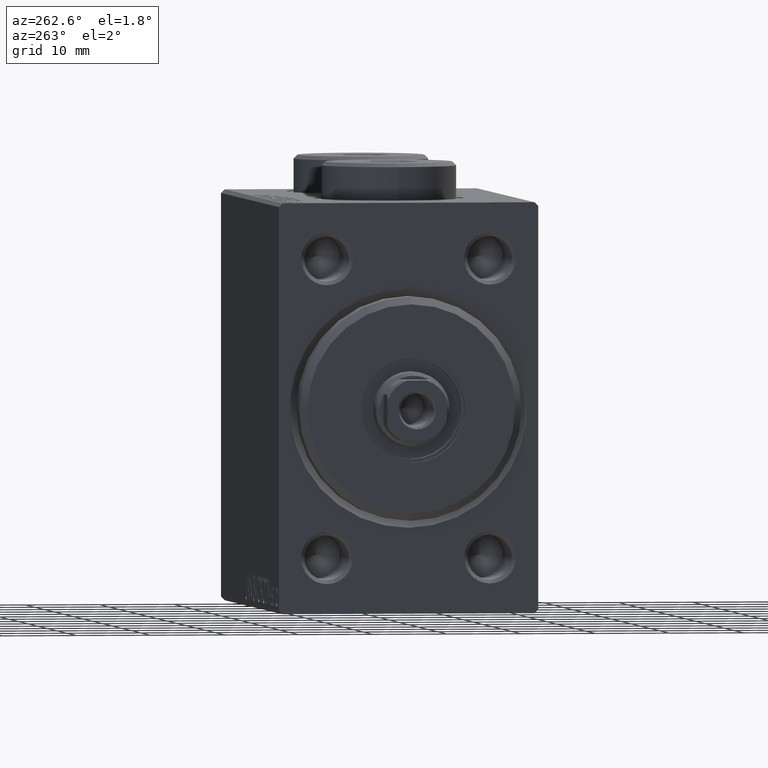
[diagram: clean part render]
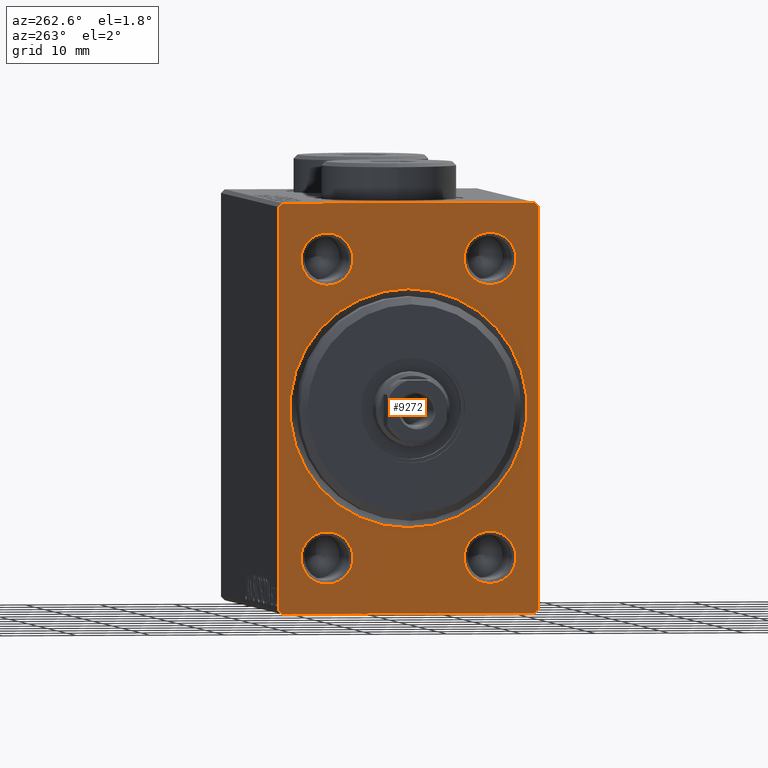
[diagram: same view with one face highlighted and labeled with its STEP entity id]
A machine part, auxiliary view. The second image highlights one B-rep face of the part: STEP entity #9272.
In plain terms, the highlighted planar face has unit normal (1, 0, 0).
Its self-contained STEP definition (entity closure, byte-faithful):
#93 = CARTESIAN_POINT ( 'NONE',  ( 0.000000000000000000, 11.00000000000000178, 20.00000000000000711 ) ) ;
#95 = VERTEX_POINT ( 'NONE', #7461 ) ;
#363 = DIRECTION ( 'NONE',  ( 0.000000000000000000, 0.000000000000000000, -1.000000000000000000 ) ) ;
#391 = DIRECTION ( 'NONE',  ( 1.000000000000000000, 0.000000000000000000, 0.000000000000000000 ) ) ;
#491 = DIRECTION ( 'NONE',  ( 0.000000000000000000, 0.000000000000000000, -1.000000000000000000 ) ) ;
#530 = EDGE_LOOP ( 'NONE', ( #40993, #10894, #7789, #10802, #27938, #6618, #10287, #5811 ) ) ;
#1183 = VECTOR ( 'NONE', #38516, 1000.000000000000000 ) ;
#2009 = VERTEX_POINT ( 'NONE', #4062 ) ;
#2363 = EDGE_CURVE ( 'NONE', #38786, #2778, #3820, .T. ) ;
#2778 = VERTEX_POINT ( 'NONE', #32804 ) ;
#2849 = VECTOR ( 'NONE', #12165, 1000.000000000000000 ) ;
#3013 = AXIS2_PLACEMENT_3D ( 'NONE', #32554, #33232, #15062 ) ;
#3486 = DIRECTION ( 'NONE',  ( 1.000000000000000000, 0.000000000000000000, 0.000000000000000000 ) ) ;
#3820 = CIRCLE ( 'NONE', #43513, 3.500000000000003109 ) ;
#4062 = CARTESIAN_POINT ( 'NONE',  ( 0.000000000000000000, -11.00000000000000533, 23.50000000000001066 ) ) ;
#4492 = CIRCLE ( 'NONE', #3013, 16.00000000000002842 ) ;
#4867 = EDGE_CURVE ( 'NONE', #41019, #8504, #33298, .T. ) ;
#4935 = CARTESIAN_POINT ( 'NONE',  ( 0.000000000000000000, 17.50000000000000711, -27.50000000000001066 ) ) ;
#5266 = CARTESIAN_POINT ( 'NONE',  ( 0.000000000000000000, -11.00000000000000533, -23.50000000000000355 ) ) ;
#5284 = CARTESIAN_POINT ( 'NONE',  ( 0.000000000000000000, -11.00000000000000533, -16.49999999999999645 ) ) ;
#5764 = ORIENTED_EDGE ( 'NONE', *, *, #38593, .T. ) ;
#5811 = ORIENTED_EDGE ( 'NONE', *, *, #6104, .T. ) ;
#6104 = EDGE_CURVE ( 'NONE', #17742, #16515, #14462, .T. ) ;
#6428 = ORIENTED_EDGE ( 'NONE', *, *, #17956, .T. ) ;
#6450 = CARTESIAN_POINT ( 'NONE',  ( 0.000000000000000000, 11.00000000000000178, -20.00000000000000000 ) ) ;
#6618 = ORIENTED_EDGE ( 'NONE', *, *, #29875, .T. ) ;
#7040 = FACE_OUTER_BOUND ( 'NONE', #530, .T. ) ;
#7179 = CARTESIAN_POINT ( 'NONE',  ( 0.000000000000000000, -11.00000000000000533, -20.00000000000000000 ) ) ;
#7461 = CARTESIAN_POINT ( 'NONE',  ( 0.000000000000000000, 0.000000000000000000, 16.00000000000002842 ) ) ;
#7789 = ORIENTED_EDGE ( 'NONE', *, *, #28911, .F. ) ;
#7919 = CARTESIAN_POINT ( 'NONE',  ( 0.000000000000000000, 11.00000000000000178, 20.00000000000000711 ) ) ;
#8425 = VERTEX_POINT ( 'NONE', #17671 ) ;
#8504 = VERTEX_POINT ( 'NONE', #44058 ) ;
#8511 = EDGE_CURVE ( 'NONE', #2009, #42471, #11978, .T. ) ;
#8625 = DIRECTION ( 'NONE',  ( 1.000000000000000000, 0.000000000000000000, 0.000000000000000000 ) ) ;
#9133 = VERTEX_POINT ( 'NONE', #10320 ) ;
#9272 = ADVANCED_FACE ( 'NONE', ( #21083, #10501, #28205, #28653, #24066, #7040 ), #45474, .F. ) ;
#9661 = CARTESIAN_POINT ( 'NONE',  ( 0.000000000000000000, 17.00000000000000000, 27.49999999999999289 ) ) ;
#10118 = ORIENTED_EDGE ( 'NONE', *, *, #36558, .T. ) ;
#10287 = ORIENTED_EDGE ( 'NONE', *, *, #22555, .F. ) ;
#10320 = CARTESIAN_POINT ( 'NONE',  ( 0.000000000000000000, 17.50000000000000711, -26.99999999999999645 ) ) ;
#10501 = FACE_BOUND ( 'NONE', #42110, .T. ) ;
#10534 = CARTESIAN_POINT ( 'NONE',  ( 0.000000000000000000, -11.00000000000000533, -20.00000000000000000 ) ) ;
#10802 = ORIENTED_EDGE ( 'NONE', *, *, #17038, .T. ) ;
#10894 = ORIENTED_EDGE ( 'NONE', *, *, #41473, .T. ) ;
#11010 = CARTESIAN_POINT ( 'NONE',  ( 0.000000000000000000, -16.99999999999997868, -27.50000000000000711 ) ) ;
#11155 = DIRECTION ( 'NONE',  ( 1.000000000000000000, 0.000000000000000000, 0.000000000000000000 ) ) ;
#11563 = EDGE_LOOP ( 'NONE', ( #31323, #10118 ) ) ;
#11790 = EDGE_LOOP ( 'NONE', ( #44909, #24527 ) ) ;
#11810 = DIRECTION ( 'NONE',  ( -0.000000000000000000, 0.7071067811865500152, -0.7071067811865451302 ) ) ;
#11978 = CIRCLE ( 'NONE', #13421, 3.500000000000003109 ) ;
#12165 = DIRECTION ( 'NONE',  ( 0.000000000000000000, -1.000000000000000000, -1.982541115402065356E-16 ) ) ;
#12259 = ORIENTED_EDGE ( 'NONE', *, *, #20865, .T. ) ;
#12392 = LINE ( 'NONE', #19519, #2849 ) ;
#12765 = CARTESIAN_POINT ( 'NONE',  ( 0.000000000000000000, -11.00000000000000533, 20.00000000000000711 ) ) ;
#13421 = AXIS2_PLACEMENT_3D ( 'NONE', #12765, #8625, #22659 ) ;
#13468 = ORIENTED_EDGE ( 'NONE', *, *, #2363, .T. ) ;
#13639 = LINE ( 'NONE', #19471, #41853 ) ;
#14129 = CARTESIAN_POINT ( 'NONE',  ( 0.000000000000000000, -17.49999999999999645, -27.50000000000000711 ) ) ;
#14202 = EDGE_CURVE ( 'NONE', #8504, #41019, #40898, .T. ) ;
#14440 = DIRECTION ( 'NONE',  ( 0.000000000000000000, 0.000000000000000000, -1.000000000000000000 ) ) ;
#14462 = LINE ( 'NONE', #11010, #40658 ) ;
#14572 = VERTEX_POINT ( 'NONE', #36624 ) ;
#15012 = VERTEX_POINT ( 'NONE', #5266 ) ;
#15062 = DIRECTION ( 'NONE',  ( 0.000000000000000000, 0.000000000000000000, -1.000000000000000000 ) ) ;
#15518 = CIRCLE ( 'NONE', #32388, 3.500000000000003109 ) ;
#15645 = CARTESIAN_POINT ( 'NONE',  ( 0.000000000000000000, -17.49999999999999645, 27.49999999999998579 ) ) ;
#16321 = LINE ( 'NONE', #15645, #22141 ) ;
#16515 = VERTEX_POINT ( 'NONE', #18368 ) ;
#16602 = EDGE_CURVE ( 'NONE', #95, #40446, #45281, .T. ) ;
#16877 = CARTESIAN_POINT ( 'NONE',  ( 0.000000000000000000, 11.00000000000000178, -16.49999999999999645 ) ) ;
#17038 = EDGE_CURVE ( 'NONE', #14572, #32996, #27134, .T. ) ;
#17671 = CARTESIAN_POINT ( 'NONE',  ( 0.000000000000000000, 16.99999999999999289, -27.50000000000001066 ) ) ;
#17742 = VERTEX_POINT ( 'NONE', #44259 ) ;
#17956 = EDGE_CURVE ( 'NONE', #15012, #19170, #45319, .T. ) ;
#18368 = CARTESIAN_POINT ( 'NONE',  ( 0.000000000000000000, -17.49999999999999645, -26.99999999999999289 ) ) ;
#19170 = VERTEX_POINT ( 'NONE', #5284 ) ;
#19471 = CARTESIAN_POINT ( 'NONE',  ( 0.000000000000000000, 17.50000000000000711, -26.99999999999999645 ) ) ;
#19519 = CARTESIAN_POINT ( 'NONE',  ( 0.000000000000000000, 17.50000000000000000, 27.49999999999999289 ) ) ;
#19666 = AXIS2_PLACEMENT_3D ( 'NONE', #30707, #34846, #31613 ) ;
#19927 = EDGE_LOOP ( 'NONE', ( #13468, #12259 ) ) ;
#20194 = CARTESIAN_POINT ( 'NONE',  ( 0.000000000000000000, 0.000000000000000000, 0.000000000000000000 ) ) ;
#20523 = CARTESIAN_POINT ( 'NONE',  ( 0.000000000000000000, -11.00000000000000533, 16.50000000000000355 ) ) ;
#20859 = CARTESIAN_POINT ( 'NONE',  ( 0.000000000000000000, 0.000000000000000000, 0.000000000000000000 ) ) ;
#20865 = EDGE_CURVE ( 'NONE', #2778, #38786, #24048, .T. ) ;
#21083 = FACE_BOUND ( 'NONE', #37204, .T. ) ;
#21585 = DIRECTION ( 'NONE',  ( -0.000000000000000000, -0.7071067811865474617, 0.7071067811865474617 ) ) ;
#21944 = CARTESIAN_POINT ( 'NONE',  ( 0.000000000000000000, -17.49999999999999645, 26.99999999999998579 ) ) ;
#22141 = VECTOR ( 'NONE', #26207, 1000.000000000000000 ) ;
#22176 = CIRCLE ( 'NONE', #24262, 3.500000000000003109 ) ;
#22555 = EDGE_CURVE ( 'NONE', #17742, #8425, #28388, .T. ) ;
#22659 = DIRECTION ( 'NONE',  ( 0.000000000000000000, 0.000000000000000000, -1.000000000000000000 ) ) ;
#23502 = LINE ( 'NONE', #44458, #36163 ) ;
#23735 = CARTESIAN_POINT ( 'NONE',  ( 0.000000000000000000, 1.959434878635768681E-15, -16.00000000000002842 ) ) ;
#24048 = CIRCLE ( 'NONE', #19666, 3.500000000000003109 ) ;
#24066 = FACE_BOUND ( 'NONE', #19927, .T. ) ;
#24169 = DIRECTION ( 'NONE',  ( 0.000000000000000000, 0.000000000000000000, -1.000000000000000000 ) ) ;
#24262 = AXIS2_PLACEMENT_3D ( 'NONE', #37998, #44902, #24169 ) ;
#24436 = DIRECTION ( 'NONE',  ( 0.000000000000000000, -0.7071067811865474617, -0.7071067811865474617 ) ) ;
#24527 = ORIENTED_EDGE ( 'NONE', *, *, #4867, .T. ) ;
#24708 = AXIS2_PLACEMENT_3D ( 'NONE', #20194, #31667, #34446 ) ;
#24731 = CARTESIAN_POINT ( 'NONE',  ( 0.000000000000000000, 11.00000000000000178, 16.50000000000000355 ) ) ;
#25175 = DIRECTION ( 'NONE',  ( 0.000000000000000000, 0.000000000000000000, -1.000000000000000000 ) ) ;
#25671 = CARTESIAN_POINT ( 'NONE',  ( 0.000000000000000000, -16.99999999999999289, 27.49999999999998579 ) ) ;
#26052 = DIRECTION ( 'NONE',  ( -0.000000000000000000, 0.7071067811865474617, 0.7071067811865474617 ) ) ;
#26159 = VECTOR ( 'NONE', #11810, 1000.000000000000114 ) ;
#26207 = DIRECTION ( 'NONE',  ( 0.000000000000000000, 0.000000000000000000, -1.000000000000000000 ) ) ;
#26927 = DIRECTION ( 'NONE',  ( 1.000000000000000000, 0.000000000000000000, 0.000000000000000000 ) ) ;
#27134 = LINE ( 'NONE', #9661, #26159 ) ;
#27938 = ORIENTED_EDGE ( 'NONE', *, *, #36315, .F. ) ;
#28205 = FACE_BOUND ( 'NONE', #11563, .T. ) ;
#28388 = LINE ( 'NONE', #14129, #1183 ) ;
#28653 = FACE_BOUND ( 'NONE', #11790, .T. ) ;
#28911 = EDGE_CURVE ( 'NONE', #14572, #33118, #12392, .T. ) ;
#29540 = DIRECTION ( 'NONE',  ( 0.000000000000000000, 0.000000000000000000, -1.000000000000000000 ) ) ;
#29875 = EDGE_CURVE ( 'NONE', #9133, #8425, #13639, .T. ) ;
#30249 = VECTOR ( 'NONE', #33920, 1000.000000000000000 ) ;
#30707 = CARTESIAN_POINT ( 'NONE',  ( 0.000000000000000000, 11.00000000000000178, -20.00000000000000000 ) ) ;
#31323 = ORIENTED_EDGE ( 'NONE', *, *, #8511, .T. ) ;
#31613 = DIRECTION ( 'NONE',  ( 0.000000000000000000, 0.000000000000000000, -1.000000000000000000 ) ) ;
#31667 = DIRECTION ( 'NONE',  ( 1.000000000000000000, 0.000000000000000000, 0.000000000000000000 ) ) ;
#32388 = AXIS2_PLACEMENT_3D ( 'NONE', #10534, #391, #14440 ) ;
#32554 = CARTESIAN_POINT ( 'NONE',  ( 0.000000000000000000, 0.000000000000000000, 0.000000000000000000 ) ) ;
#32804 = CARTESIAN_POINT ( 'NONE',  ( 0.000000000000000000, 11.00000000000000178, -23.50000000000000355 ) ) ;
#32996 = VERTEX_POINT ( 'NONE', #41137 ) ;
#33118 = VERTEX_POINT ( 'NONE', #25671 ) ;
#33232 = DIRECTION ( 'NONE',  ( 1.000000000000000000, 0.000000000000000000, 0.000000000000000000 ) ) ;
#33241 = LINE ( 'NONE', #4935, #30249 ) ;
#33298 = CIRCLE ( 'NONE', #34737, 3.500000000000003109 ) ;
#33920 = DIRECTION ( 'NONE',  ( 0.000000000000000000, -1.261617073437677752E-16, 1.000000000000000000 ) ) ;
#34205 = ORIENTED_EDGE ( 'NONE', *, *, #16602, .T. ) ;
#34446 = DIRECTION ( 'NONE',  ( 0.000000000000000000, 0.000000000000000000, -1.000000000000000000 ) ) ;
#34624 = DIRECTION ( 'NONE',  ( 0.000000000000000000, 0.000000000000000000, -1.000000000000000000 ) ) ;
#34737 = AXIS2_PLACEMENT_3D ( 'NONE', #93, #38528, #34624 ) ;
#34846 = DIRECTION ( 'NONE',  ( 1.000000000000000000, 0.000000000000000000, 0.000000000000000000 ) ) ;
#35021 = EDGE_CURVE ( 'NONE', #43726, #16515, #16321, .T. ) ;
#35113 = DIRECTION ( 'NONE',  ( 1.000000000000000000, 0.000000000000000000, 0.000000000000000000 ) ) ;
#36163 = VECTOR ( 'NONE', #26052, 1000.000000000000114 ) ;
#36315 = EDGE_CURVE ( 'NONE', #9133, #32996, #33241, .T. ) ;
#36558 = EDGE_CURVE ( 'NONE', #42471, #2009, #22176, .T. ) ;
#36624 = CARTESIAN_POINT ( 'NONE',  ( 0.000000000000000000, 17.00000000000000000, 27.49999999999999289 ) ) ;
#37204 = EDGE_LOOP ( 'NONE', ( #34205, #5764 ) ) ;
#37998 = CARTESIAN_POINT ( 'NONE',  ( 0.000000000000000000, -11.00000000000000533, 20.00000000000000711 ) ) ;
#38193 = EDGE_CURVE ( 'NONE', #19170, #15012, #15518, .T. ) ;
#38516 = DIRECTION ( 'NONE',  ( 0.000000000000000000, 1.000000000000000000, -9.912705577010325549E-17 ) ) ;
#38528 = DIRECTION ( 'NONE',  ( 1.000000000000000000, 0.000000000000000000, 0.000000000000000000 ) ) ;
#38593 = EDGE_CURVE ( 'NONE', #40446, #95, #4492, .T. ) ;
#38685 = AXIS2_PLACEMENT_3D ( 'NONE', #7919, #11155, #25175 ) ;
#38786 = VERTEX_POINT ( 'NONE', #16877 ) ;
#40404 = ORIENTED_EDGE ( 'NONE', *, *, #38193, .T. ) ;
#40446 = VERTEX_POINT ( 'NONE', #23735 ) ;
#40658 = VECTOR ( 'NONE', #21585, 1000.000000000000114 ) ;
#40898 = CIRCLE ( 'NONE', #38685, 3.500000000000003109 ) ;
#40993 = ORIENTED_EDGE ( 'NONE', *, *, #35021, .F. ) ;
#41019 = VERTEX_POINT ( 'NONE', #24731 ) ;
#41137 = CARTESIAN_POINT ( 'NONE',  ( 0.000000000000000000, 17.50000000000000000, 26.99999999999999645 ) ) ;
#41402 = AXIS2_PLACEMENT_3D ( 'NONE', #20859, #35113, #363 ) ;
#41473 = EDGE_CURVE ( 'NONE', #43726, #33118, #23502, .T. ) ;
#41853 = VECTOR ( 'NONE', #24436, 1000.000000000000114 ) ;
#42110 = EDGE_LOOP ( 'NONE', ( #40404, #6428 ) ) ;
#42368 = AXIS2_PLACEMENT_3D ( 'NONE', #7179, #3486, #491 ) ;
#42471 = VERTEX_POINT ( 'NONE', #20523 ) ;
#43513 = AXIS2_PLACEMENT_3D ( 'NONE', #6450, #26927, #29540 ) ;
#43726 = VERTEX_POINT ( 'NONE', #21944 ) ;
#44058 = CARTESIAN_POINT ( 'NONE',  ( 0.000000000000000000, 11.00000000000000178, 23.50000000000001066 ) ) ;
#44259 = CARTESIAN_POINT ( 'NONE',  ( 0.000000000000000000, -16.99999999999997868, -27.50000000000000711 ) ) ;
#44458 = CARTESIAN_POINT ( 'NONE',  ( 0.000000000000000000, -17.49999999999999645, 26.99999999999998579 ) ) ;
#44902 = DIRECTION ( 'NONE',  ( 1.000000000000000000, 0.000000000000000000, 0.000000000000000000 ) ) ;
#44909 = ORIENTED_EDGE ( 'NONE', *, *, #14202, .T. ) ;
#45281 = CIRCLE ( 'NONE', #24708, 16.00000000000002842 ) ;
#45319 = CIRCLE ( 'NONE', #42368, 3.500000000000003109 ) ;
#45474 = PLANE ( 'NONE',  #41402 ) ;